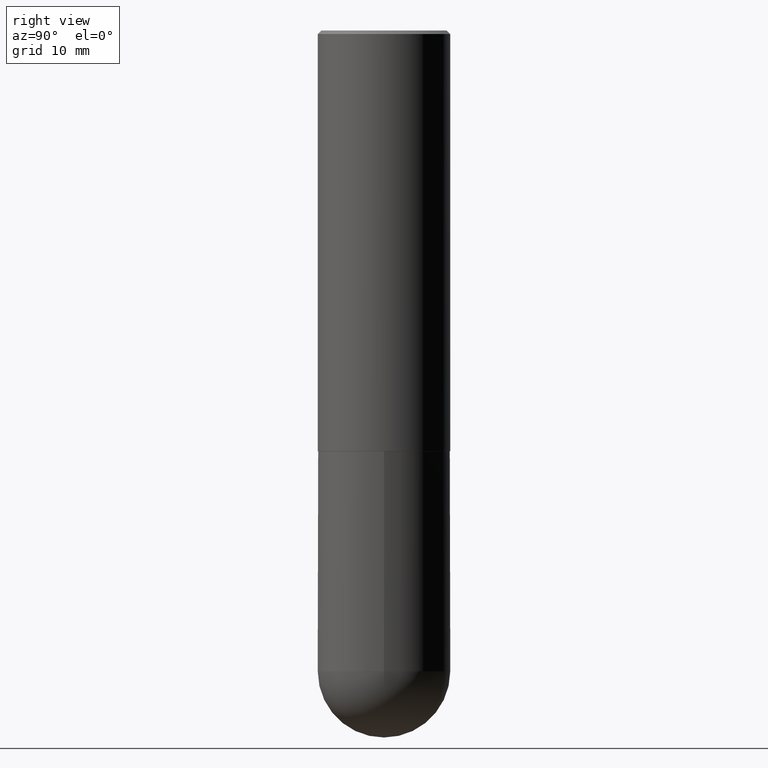
[diagram: clean part render]
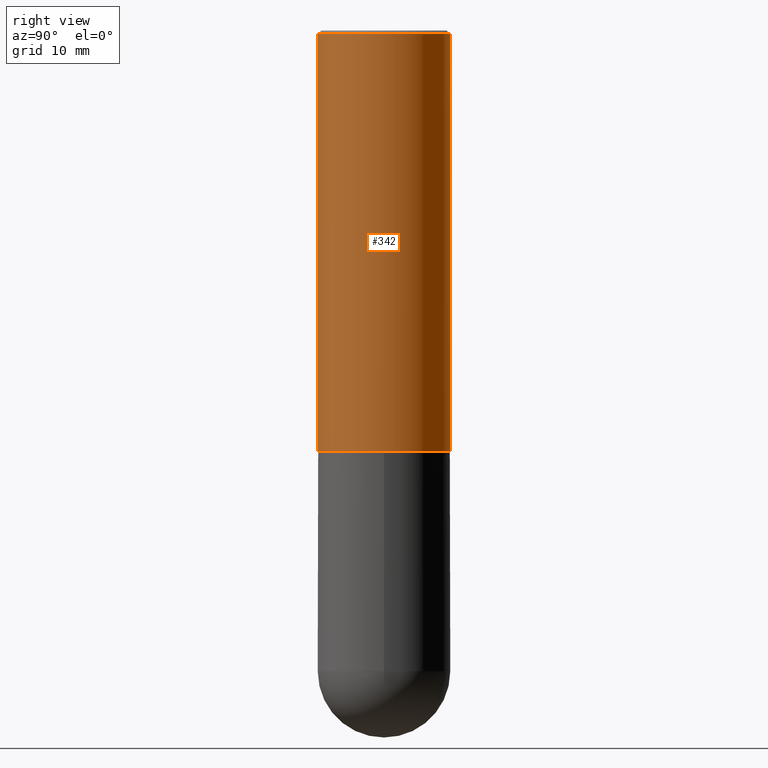
[diagram: same view with one face highlighted and labeled with its STEP entity id]
A machine part, right view. The second image highlights one B-rep face of the part: STEP entity #342.
In plain terms, the highlighted cylindrical surface (partial cylindrical patch) has radius 9.525 mm, axis along (-0, 0, 1).
Its self-contained STEP definition (entity closure, byte-faithful):
#9 = CARTESIAN_POINT ( 'NONE',  ( -2.618611004132293613E-15, -0.3750000000000086597, -2.378999999999998227 ) ) ;
#12 = CARTESIAN_POINT ( 'NONE',  ( 2.618611004132350411E-15, 0.3749999999999999445, -0.02000000000000139513 ) ) ;
#24 = CYLINDRICAL_SURFACE ( 'NONE', #170, 0.3750000000000001665 ) ;
#34 = VECTOR ( 'NONE', #152, 39.37007874015748143 ) ;
#43 = EDGE_CURVE ( 'NONE', #91, #225, #126, .T. ) ;
#86 = DIRECTION ( 'NONE',  ( -2.445088416744134467E-29, 3.492026078173082929E-15, 1.000000000000000000 ) ) ;
#91 = VERTEX_POINT ( 'NONE', #9 ) ;
#103 = CARTESIAN_POINT ( 'NONE',  ( 2.664535259100406068E-15, 0.3749999999999919509, -2.379000000000000892 ) ) ;
#105 = CARTESIAN_POINT ( 'NONE',  ( 2.664535259100376486E-15, 0.3750000000000001665, -1.309509779314906542E-15 ) ) ;
#121 = EDGE_CURVE ( 'NONE', #91, #283, #405, .T. ) ;
#126 = CIRCLE ( 'NONE', #377, 0.3750000000000002776 ) ;
#134 = CIRCLE ( 'NONE', #194, 0.3750000000000000555 ) ;
#145 = EDGE_CURVE ( 'NONE', #225, #195, #308, .T. ) ;
#148 = DIRECTION ( 'NONE',  ( -2.445088416744134467E-29, 3.492026078173082929E-15, 1.000000000000000000 ) ) ;
#152 = DIRECTION ( 'NONE',  ( -2.445088416744134467E-29, 3.492026078173082929E-15, 1.000000000000000000 ) ) ;
#166 = ORIENTED_EDGE ( 'NONE', *, *, #121, .F. ) ;
#170 = AXIS2_PLACEMENT_3D ( 'NONE', #182, #240, #404 ) ;
#181 = CARTESIAN_POINT ( 'NONE',  ( 5.816865343434295520E-29, -8.307530039973762006E-15, -2.378999999999999559 ) ) ;
#182 = CARTESIAN_POINT ( 'NONE',  ( 0.000000000000000000, 0.000000000000000000, 0.000000000000000000 ) ) ;
#188 = EDGE_LOOP ( 'NONE', ( #218, #334, #229, #166 ) ) ;
#194 = AXIS2_PLACEMENT_3D ( 'NONE', #212, #148, #266 ) ;
#195 = VERTEX_POINT ( 'NONE', #12 ) ;
#203 = DIRECTION ( 'NONE',  ( -2.445088416744134467E-29, 3.492026078173082929E-15, 1.000000000000000000 ) ) ;
#212 = CARTESIAN_POINT ( 'NONE',  ( 4.890176833488289918E-31, -6.984052156346196327E-17, -0.02000000000000008715 ) ) ;
#218 = ORIENTED_EDGE ( 'NONE', *, *, #43, .T. ) ;
#220 = DIRECTION ( 'NONE',  ( -6.982962677686266711E-15, -1.000000000000000000, 3.642463991552348591E-15 ) ) ;
#225 = VERTEX_POINT ( 'NONE', #103 ) ;
#229 = ORIENTED_EDGE ( 'NONE', *, *, #401, .F. ) ;
#240 = DIRECTION ( 'NONE',  ( -2.445088416744134467E-29, 3.492026078173082929E-15, 1.000000000000000000 ) ) ;
#258 = CARTESIAN_POINT ( 'NONE',  ( -2.572686749164323547E-15, -0.3750000000000001110, -0.01999999999999877570 ) ) ;
#266 = DIRECTION ( 'NONE',  ( -6.982962677686265922E-15, -1.000000000000000000, 3.494488891895536035E-15 ) ) ;
#279 = CARTESIAN_POINT ( 'NONE',  ( -2.618611004132351200E-15, -0.3750000000000001665, 1.309509779314906542E-15 ) ) ;
#283 = VERTEX_POINT ( 'NONE', #258 ) ;
#308 = LINE ( 'NONE', #105, #363 ) ;
#312 = FACE_OUTER_BOUND ( 'NONE', #188, .T. ) ;
#334 = ORIENTED_EDGE ( 'NONE', *, *, #145, .T. ) ;
#342 = ADVANCED_FACE ( 'NONE', ( #312 ), #24, .T. ) ;
#363 = VECTOR ( 'NONE', #203, 39.37007874015748143 ) ;
#377 = AXIS2_PLACEMENT_3D ( 'NONE', #181, #86, #220 ) ;
#401 = EDGE_CURVE ( 'NONE', #283, #195, #134, .T. ) ;
#404 = DIRECTION ( 'NONE',  ( -6.982962677686266711E-15, -1.000000000000000000, 3.492026078173082534E-15 ) ) ;
#405 = LINE ( 'NONE', #279, #34 ) ;